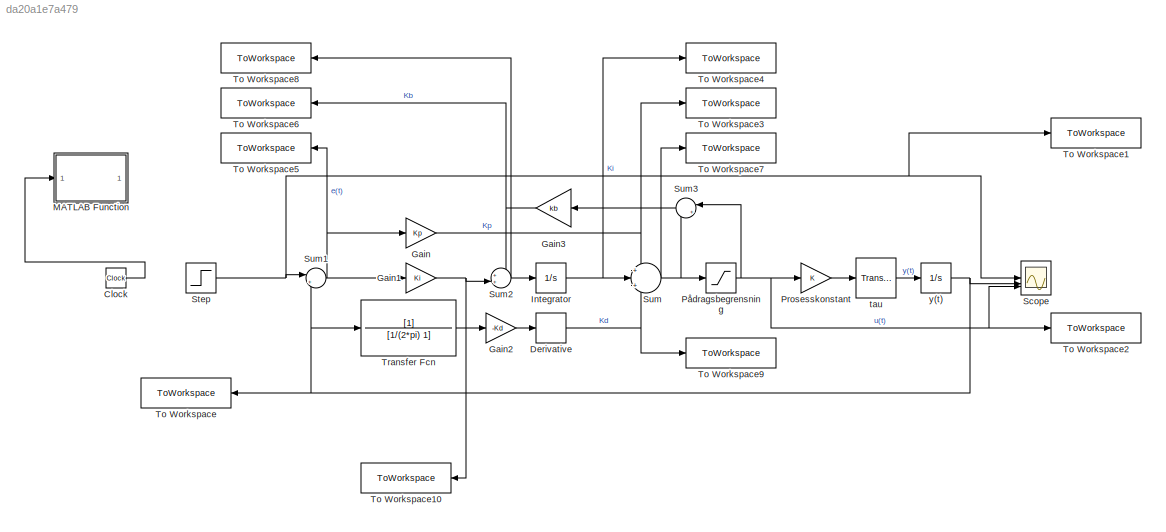
MODEL slx_da20a1e7a479
KIND model
CONFIG AbsTol = auto
CONFIG EnableMultiTasking = off
CONFIG FixedStep = 0.01
CONFIG MaxStep = 10e-9
CONFIG MinStep = auto
CONFIG RelTol = 1e-9
CONFIG SampleTimeConstraint = Unconstrained
CONFIG SolverName = ode1
CONFIG StartTime = 0.0
CONFIG StopTime = 1.5
BLOCK [Clock] Clock
BLOCK [Derivative] Derivative
BLOCK [Gain] Gain
  Gain = Kp
BLOCK [Gain] Gain1
  Gain = Ki
BLOCK [Gain] Gain2
  Gain = -Kd
BLOCK [Gain] Gain3
  Gain = kb
  NameLocation = top
BLOCK [Integrator] Integrator
  LimitOutput = on
  LowerSaturationLimit = -250
  UpperSaturationLimit = 250
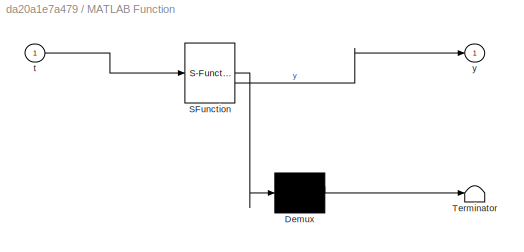
BLOCK [SubSystem] MATLAB Function
  ErrorFcn = Stateflow.Translate.translate
  PermitHierarchicalResolution = ExplicitOnly
  SFBlockType = MATLAB Function
  TreatAsAtomicUnit = on
BLOCK [Demux] MATLAB Function/ Demux 
  Outputs = 1
BLOCK [S-Function] MATLAB Function/ SFunction 
  EnableBusSupport = off
  FunctionName = sf_sfun
  PortCounts = [1 2]
  SFcnIsStateOwnerBlock = off
  SFunctionDeploymentMode = off
  Tag = Stateflow S-Function 2
BLOCK [Terminator] MATLAB Function/ Terminator 
BLOCK [Inport] MATLAB Function/t
BLOCK [Outport] MATLAB Function/y
BLOCK [Gain] Prosesskonstant
  Gain = K
BLOCK [Saturate] Pådragsbegrensning
  LowerLimit = -250
  UpperLimit = 250
BLOCK [Scope] Scope
  ActiveDisplayYMaximum = 665.4302807060958
  ActiveDisplayYMinimum = -127.62252635490631
  Floating = off
  GraphicalSettings = {"Style":{"BackgroundColor":[0.12941176470588237,0.12941176470588237,0.12941176470588237],"AxesColor":[0.07058823529411765,0.07058823529411765,0.07058823529411765],"LabelsColor":[0.8509803921568627,0.8509803921568627,0.8509803921568627],"PreserveColors":false,"Visible":[true,true,true],"LineStyle":["-","-","-"],"LineWidth":[1.5,1.5,1.5],"BarWidth":[0.9,0.9,0.9],"LineColor":["auto","auto","auto"],"...<+2676ch>
  MultipleDisplayCache = [{"MaxYLimMag":665.4302807060958,"MaxYLimReal":665.4302807060958,"MinYLimMag":0,"MinYLimReal":-127.62252635490631,"PlotAsMagnitudePhase":false,"ShowGrid":true,"ShowLegend":false,"Title":"%<SignalLabel>","YLabel":""}]
  NumInputPorts = 3
  ScopeFrameLocation = window
  WasSavedAsWebScope = on
  WindowPosition = [1763.000000,67.000000,1323.000000,954.000000,]
BLOCK [Step] Step
  After = 200+setpoint
  Before = 200
  SampleTime = 0
  Time = 0.1
BLOCK [Sum] Sum
  Inputs = +|+|+
BLOCK [Sum] Sum1
  Inputs = |+-
BLOCK [Sum] Sum2
  Inputs = ++|
BLOCK [Sum] Sum3
  Inputs = |+-
  NameLocation = top
BLOCK [ToWorkspace] To Workspace
  FixptAsFi = on
  MaxDataPoints = inf
  NameLocation = top
  SampleTime = -1
  SaveFormat = Timeseries
  VariableName = y
BLOCK [ToWorkspace] To Workspace1
  FixptAsFi = on
  MaxDataPoints = inf
  SampleTime = -1
  SaveFormat = Timeseries
  VariableName = r
BLOCK [ToWorkspace] To Workspace10
  FixptAsFi = on
  MaxDataPoints = inf
  NameLocation = top
  SampleTime = -1
  SaveFormat = Timeseries
  VariableName = fsum
BLOCK [ToWorkspace] To Workspace2
  FixptAsFi = on
  MaxDataPoints = inf
  SampleTime = -1
  SaveFormat = Timeseries
  VariableName = u
BLOCK [ToWorkspace] To Workspace3
  FixptAsFi = on
  MaxDataPoints = inf
  SampleTime = -1
  SaveFormat = Timeseries
  VariableName = kp
BLOCK [ToWorkspace] To Workspace4
  FixptAsFi = on
  MaxDataPoints = inf
  SampleTime = -1
  SaveFormat = Timeseries
  VariableName = ki
BLOCK [ToWorkspace] To Workspace5
  FixptAsFi = on
  MaxDataPoints = inf
  NameLocation = top
  SampleTime = -1
  SaveFormat = Timeseries
  VariableName = e
BLOCK [ToWorkspace] To Workspace6
  FixptAsFi = on
  MaxDataPoints = inf
  NameLocation = top
  SampleTime = -1
  SaveFormat = Timeseries
  VariableName = kb
BLOCK [ToWorkspace] To Workspace7
  FixptAsFi = on
  MaxDataPoints = inf
  SampleTime = -1
  SaveFormat = Timeseries
  VariableName = u_unsat
BLOCK [ToWorkspace] To Workspace8
  FixptAsFi = on
  MaxDataPoints = inf
  NameLocation = top
  SampleTime = -1
  SaveFormat = Timeseries
  VariableName = kif
BLOCK [ToWorkspace] To Workspace9
  FixptAsFi = on
  MaxDataPoints = inf
  SampleTime = -1
  SaveFormat = Timeseries
  VariableName = kd
BLOCK [TransferFcn] Transfer Fcn
  Denominator = [1/(2*pi) 1]
BLOCK [TransportDelay] tau
  BufferSize = 2^16
  DelayTime = Tau
BLOCK [Integrator] y(t)
  InitialCondition = avstand_t0
LINE Clock:1 -> MATLAB Function:1
NET Derivative:1 -> Sum:3, To Workspace9:1
NET Gain1:1 -> Sum2:2, To Workspace10:1
LINE Gain2:1 -> Derivative:1
NET Gain3:1 -> Sum2:1, To Workspace6:1
NET Gain:1 -> Sum:1, To Workspace3:1
NET Integrator:1 -> Sum:2, To Workspace4:1
LINE Prosesskonstant:1 -> tau:1
NET Pådragsbegrensning:1 -> Prosesskonstant:1, Scope:3, Sum3:1, To Workspace2:1
NET Step:1 -> Scope:1, Sum1:1, To Workspace1:1
NET Sum1:1 -> Gain1:1, Gain:1, To Workspace5:1
NET Sum2:1 -> Integrator:1, To Workspace8:1
LINE Sum3:1 -> Gain3:1
NET Sum:1 -> Pådragsbegrensning:1, Sum3:2, To Workspace7:1
LINE Transfer Fcn:1 -> Gain2:1
LINE tau:1 -> y(t):1
NET y(t):1 -> Scope:2, Sum1:2, To Workspace:1, Transfer Fcn:1
note: NET lines group one-source signal fan-out (src -> all destinations, sorted); 1:1 wires keep LINE
CHART MATLAB Function states=1 transitions=1
  STATE_LABEL 'eML_blk_kernel()'
  STATE_LABEL 'SCRIPT:\nfunction y = custom_step(t)\n% t = simulink clock input\n\nif t < 0.1\n    y = 0;\n\nelseif t < 1.1\n    y = 100;\n\nelseif t < 2.5\n    y = 300;\n\nelseif t < 4.0\n    y = 0;\n\nelse\n    y = 0;\nend\n'
CHART  states=0 transitions=0
